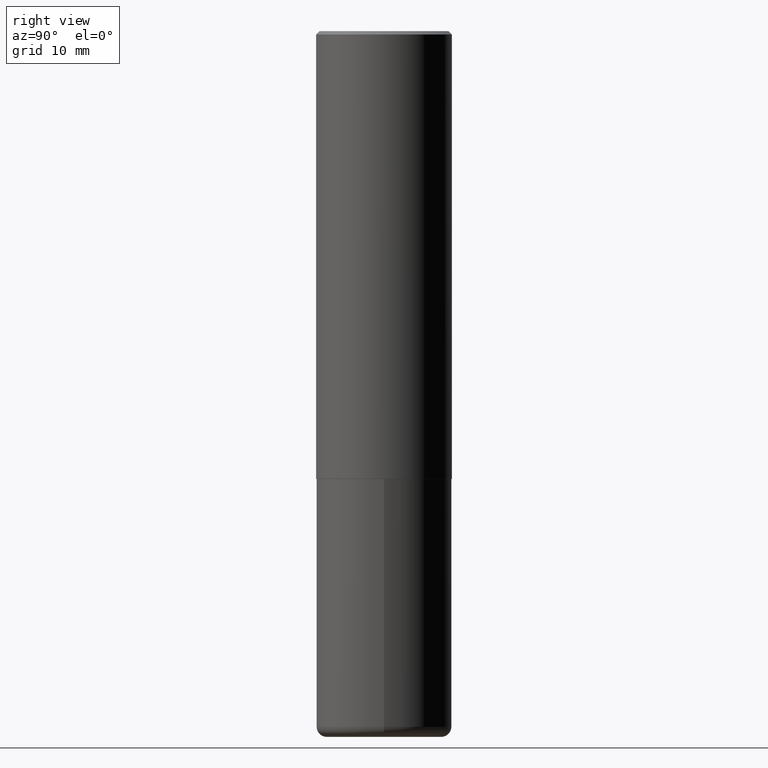
[diagram: clean part render]
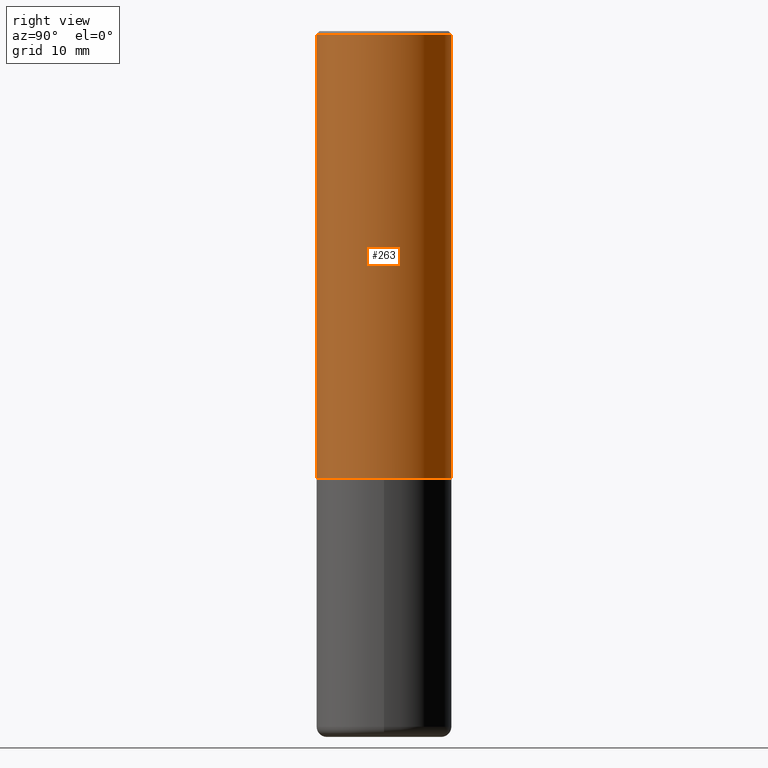
[diagram: same view with one face highlighted and labeled with its STEP entity id]
A machine part, right view. The second image highlights one B-rep face of the part: STEP entity #263.
In plain terms, the highlighted cylindrical surface (partial cylindrical patch) has radius 10 mm, axis along (-0, 0, 1).
Its self-contained STEP definition (entity closure, byte-faithful):
#15 = DIRECTION ( 'NONE',  ( -6.982962677686265133E-15, -1.000000000000000000, 3.491137977679279424E-15 ) ) ;
#54 = ORIENTED_EDGE ( 'NONE', *, *, #146, .F. ) ;
#61 = CYLINDRICAL_SURFACE ( 'NONE', #280, 0.3937000000000001609 ) ;
#92 = CARTESIAN_POINT ( 'NONE',  ( 6.354405589688293982E-29, -9.065129169959442290E-15, -2.597400000000000375 ) ) ;
#103 = VERTEX_POINT ( 'NONE', #394 ) ;
#118 = LINE ( 'NONE', #124, #128 ) ;
#121 = CARTESIAN_POINT ( 'NONE',  ( -2.749192406205021291E-15, -0.3937000000000093758, -2.597399999999999043 ) ) ;
#124 = CARTESIAN_POINT ( 'NONE',  ( -2.749192406205084005E-15, -0.3937000000000001609, 1.374043795415812967E-15 ) ) ;
#128 = VECTOR ( 'NONE', #208, 39.37007874015748143 ) ;
#140 = VECTOR ( 'NONE', #335, 39.37007874015748143 ) ;
#146 = EDGE_CURVE ( 'NONE', #150, #103, #348, .T. ) ;
#148 = CARTESIAN_POINT ( 'NONE',  ( 2.797406750687515181E-15, 0.3937000000000001609, -1.374043795415812967E-15 ) ) ;
#150 = VERTEX_POINT ( 'NONE', #399 ) ;
#158 = ORIENTED_EDGE ( 'NONE', *, *, #383, .T. ) ;
#162 = CARTESIAN_POINT ( 'NONE',  ( 0.000000000000000000, 0.000000000000000000, 0.000000000000000000 ) ) ;
#165 = CIRCLE ( 'NONE', #271, 0.3937000000000002720 ) ;
#177 = AXIS2_PLACEMENT_3D ( 'NONE', #183, #310, #15 ) ;
#183 = CARTESIAN_POINT ( 'NONE',  ( 4.892897196957202805E-31, -6.980156441025239140E-17, -0.02000000000000008715 ) ) ;
#208 = DIRECTION ( 'NONE',  ( -2.446448598478590805E-29, 3.490078220512605001E-15, 1.000000000000000000 ) ) ;
#213 = VERTEX_POINT ( 'NONE', #403 ) ;
#217 = EDGE_CURVE ( 'NONE', #356, #150, #118, .T. ) ;
#226 = EDGE_LOOP ( 'NONE', ( #269, #158, #54, #244 ) ) ;
#235 = FACE_OUTER_BOUND ( 'NONE', #226, .T. ) ;
#244 = ORIENTED_EDGE ( 'NONE', *, *, #217, .F. ) ;
#256 = DIRECTION ( 'NONE',  ( -6.982962677686265922E-15, -1.000000000000000000, 3.490078220512604606E-15 ) ) ;
#263 = ADVANCED_FACE ( 'NONE', ( #235 ), #61, .T. ) ;
#269 = ORIENTED_EDGE ( 'NONE', *, *, #357, .T. ) ;
#271 = AXIS2_PLACEMENT_3D ( 'NONE', #92, #344, #306 ) ;
#280 = AXIS2_PLACEMENT_3D ( 'NONE', #162, #289, #256 ) ;
#289 = DIRECTION ( 'NONE',  ( -2.446448598478591086E-29, 3.490078220512604606E-15, 1.000000000000000000 ) ) ;
#306 = DIRECTION ( 'NONE',  ( -6.982962677686265922E-15, -1.000000000000000000, 4.163344669033672479E-15 ) ) ;
#309 = LINE ( 'NONE', #148, #140 ) ;
#310 = DIRECTION ( 'NONE',  ( -2.446448598478591086E-29, 3.490078220512604606E-15, 1.000000000000000000 ) ) ;
#335 = DIRECTION ( 'NONE',  ( -2.446448598478590805E-29, 3.490078220512605001E-15, 1.000000000000000000 ) ) ;
#344 = DIRECTION ( 'NONE',  ( -2.446448598478591086E-29, 3.490078220512604606E-15, 1.000000000000000000 ) ) ;
#348 = CIRCLE ( 'NONE', #177, 0.3937000000000000499 ) ;
#356 = VERTEX_POINT ( 'NONE', #121 ) ;
#357 = EDGE_CURVE ( 'NONE', #356, #213, #165, .T. ) ;
#383 = EDGE_CURVE ( 'NONE', #213, #103, #309, .T. ) ;
#394 = CARTESIAN_POINT ( 'NONE',  ( 2.749192406205083217E-15, 0.3936999999999999389, -0.02000000000000146105 ) ) ;
#399 = CARTESIAN_POINT ( 'NONE',  ( -2.700978061722651252E-15, -0.3937000000000001054, -0.01999999999999870978 ) ) ;
#403 = CARTESIAN_POINT ( 'NONE',  ( 2.797406750687547524E-15, 0.3936999999999912236, -2.597400000000002152 ) ) ;